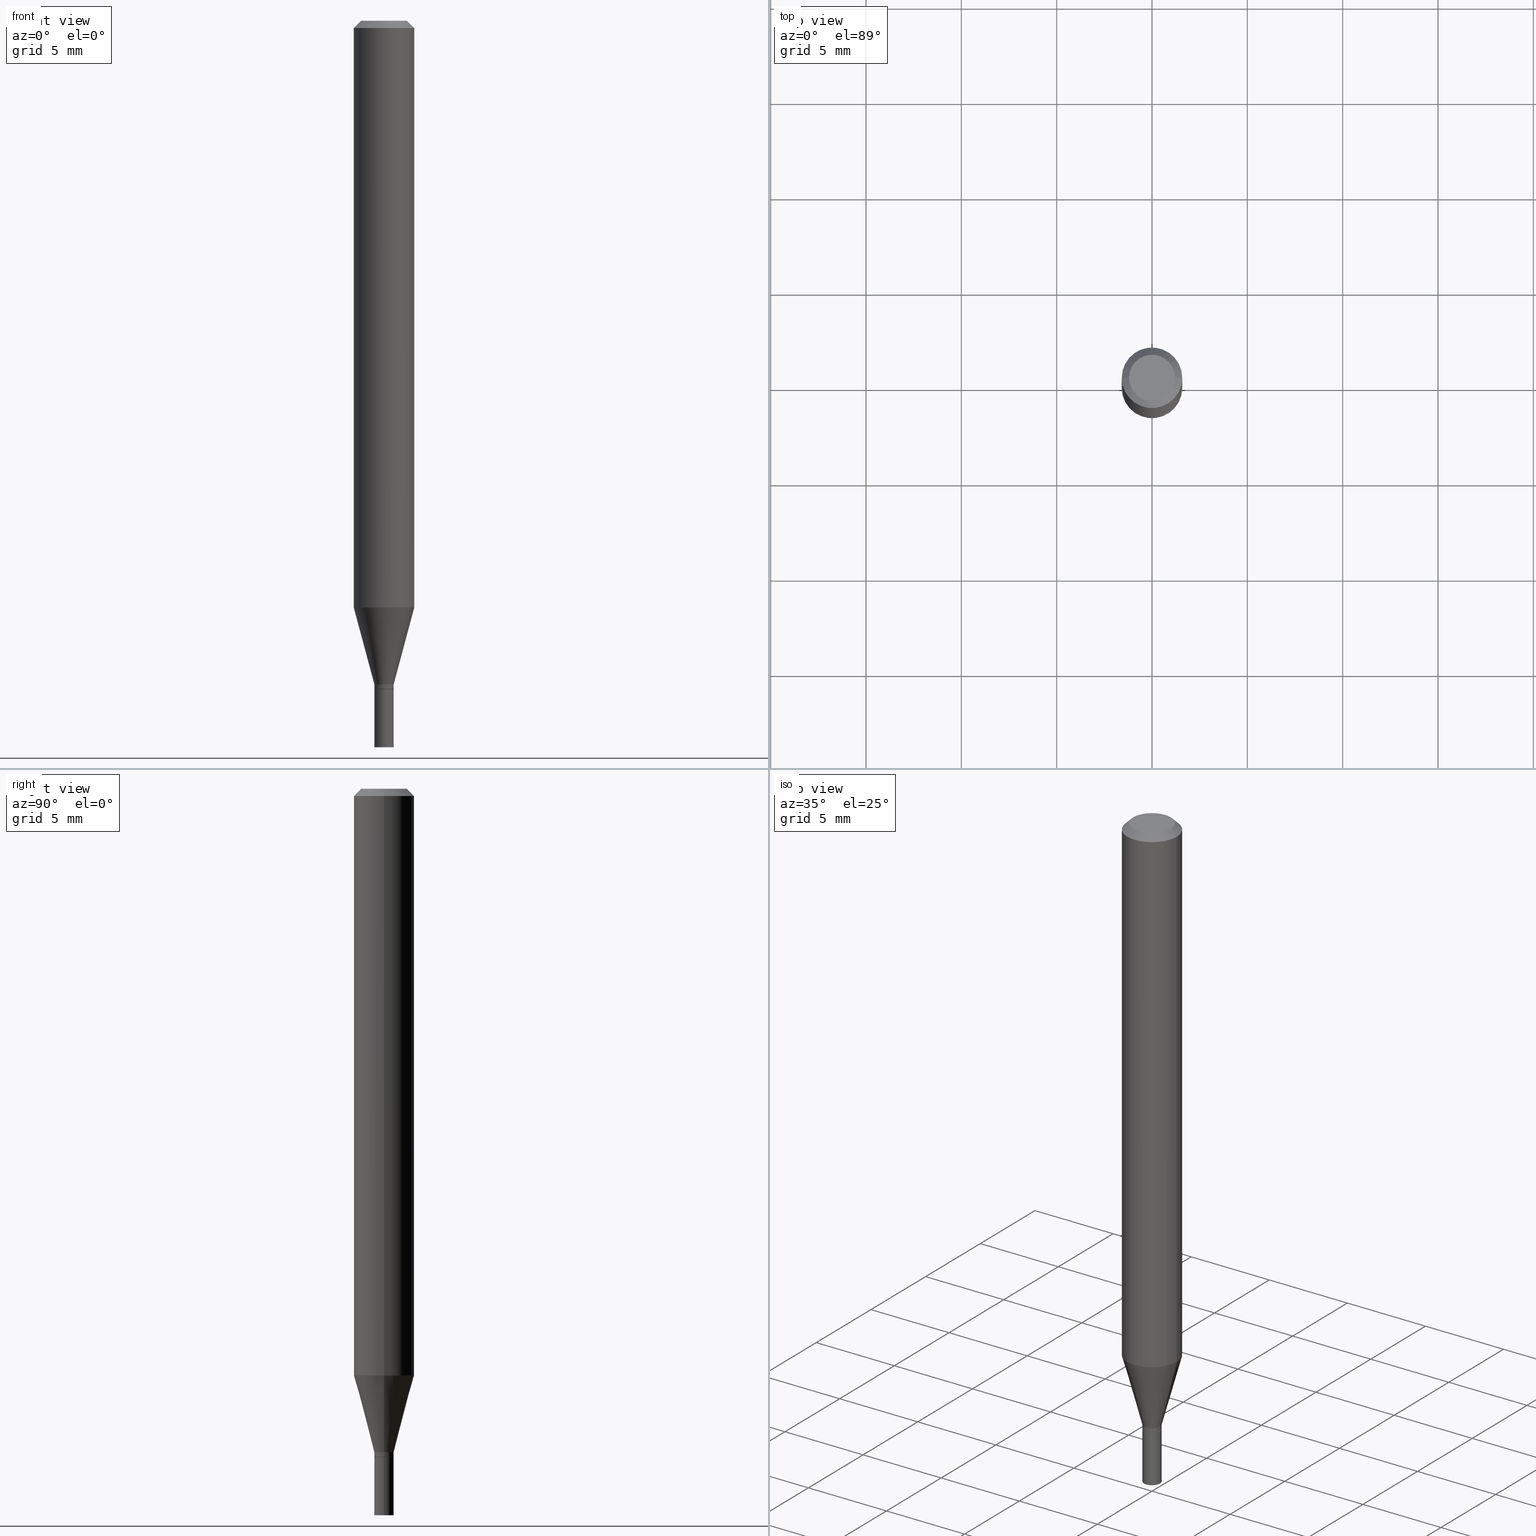
[diagram: canonical four-view strip — front | top / right | iso, engineering-drawing reading convention]
A machine part, canonical four-view strip (front | top / right | iso — engineering-drawing reading convention). The complete STEP part file that produces these views, byte-faithful:
ISO-10303-21;
HEADER;
FILE_DESCRIPTION (( 'STEP AP203' ),
    '1' );
FILE_NAME ('01191.STEP',
    '2024-03-19T23:50:57',
    ( '' ),
    ( '' ),
    'SwSTEP 2.0',
    'SolidWorks 2023',
    '' );
FILE_SCHEMA (( 'CONFIG_CONTROL_DESIGN' ));
ENDSEC;

DATA;
#1 = EDGE_CURVE ( 'NONE', #146, #419, #35, .T. ) ;
#2 = DIRECTION ( 'NONE',  ( -2.445468806185136597E-29, 3.491481338843145583E-15, 1.000000000000000000 ) ) ;
#3 = AXIS2_PLACEMENT_3D ( 'NONE', #8, #145, #130 ) ;
#4 = FACE_OUTER_BOUND ( 'NONE', #153, .T. ) ;
#5 = CALENDAR_DATE ( 2024, 19, 3 ) ;
#6 = ORIENTED_EDGE ( 'NONE', *, *, #58, .F. ) ;
#7 = ADVANCED_FACE ( 'NONE', ( #295 ), #384, .T. ) ;
#8 = CARTESIAN_POINT ( 'NONE',  ( 3.374746952535488593E-29, -4.818244247603541543E-15, -1.380000000000000115 ) ) ;
#9 = ORIENTED_EDGE ( 'NONE', *, *, #161, .T. ) ;
#10 = AXIS2_PLACEMENT_3D ( 'NONE', #361, #327, #138 ) ;
#11 = AXIS2_PLACEMENT_3D ( 'NONE', #426, #386, #164 ) ;
#12 = DIRECTION ( 'NONE',  ( -2.445468806185136597E-29, 3.491481338843145583E-15, 1.000000000000000000 ) ) ;
#13 = ORIENTED_EDGE ( 'NONE', *, *, #274, .F. ) ;
#14 = COORDINATED_UNIVERSAL_TIME_OFFSET ( 5, 0, .BEHIND. ) ;
#15 = CARTESIAN_POINT ( 'NONE',  ( 0.000000000000000000, 0.000000000000000000, 0.000000000000000000 ) ) ;
#16 = VERTEX_POINT ( 'NONE', #73 ) ;
#17 = SHAPE_DEFINITION_REPRESENTATION ( #271, #402 ) ;
#18 = ADVANCED_FACE ( 'NONE', ( #4 ), #357, .T. ) ;
#19 = CC_DESIGN_PERSON_AND_ORGANIZATION_ASSIGNMENT ( #162, #460, ( #151 ) ) ;
#20 = CARTESIAN_POINT ( 'NONE',  ( -0.01999999999999992409, 1.421085471520194978E-16, -9.837870180509774009E-31 ) ) ;
#21 = ORIENTED_EDGE ( 'NONE', *, *, #202, .T. ) ;
#22 = FACE_OUTER_BOUND ( 'NONE', #177, .T. ) ;
#23 = CIRCLE ( 'NONE', #186, 0.01949999999999999997 ) ;
#24 = ORIENTED_EDGE ( 'NONE', *, *, #142, .T. ) ;
#25 = AXIS2_PLACEMENT_3D ( 'NONE', #37, #397, #103 ) ;
#26 = PERSON_AND_ORGANIZATION_ROLE ( 'design_owner' ) ;
#27 =( NAMED_UNIT ( * ) SI_UNIT ( $, .STERADIAN. ) SOLID_ANGLE_UNIT ( ) );
#28 = FACE_OUTER_BOUND ( 'NONE', #219, .T. ) ;
#29 = CIRCLE ( 'NONE', #198, 0.06250000000000000000 ) ;
#30 = CC_DESIGN_APPROVAL ( #436, ( #365 ) ) ;
#31 = CARTESIAN_POINT ( 'NONE',  ( -0.02000000000000000042, -4.885624580782109696E-15, -1.380000000000000115 ) ) ;
#32 = DIRECTION ( 'NONE',  ( -2.445468806185136597E-29, 3.491481338843145583E-15, 1.000000000000000000 ) ) ;
#33 = ADVANCED_FACE ( 'NONE', ( #207 ), #175, .T. ) ;
#34 =( NAMED_UNIT ( * ) PLANE_ANGLE_UNIT ( ) SI_UNIT ( $, .RADIAN. ) );
#35 = CIRCLE ( 'NONE', #25, 0.06250000000000000000 ) ;
#36 = APPROVAL_PERSON_ORGANIZATION ( #277, #97, #204 ) ;
#37 = CARTESIAN_POINT ( 'NONE',  ( 2.962411176570807976E-29, -4.229538039829856953E-15, -1.211387840678322503 ) ) ;
#38 = VERTEX_POINT ( 'NONE', #439 ) ;
#39 = DIRECTION ( 'NONE',  ( -2.445468806185136597E-29, 3.491481338843145583E-15, 1.000000000000000000 ) ) ;
#40 = AXIS2_PLACEMENT_3D ( 'NONE', #15, #232, #367 ) ;
#41 = LINE ( 'NONE', #181, #70 ) ;
#42 = ORIENTED_EDGE ( 'NONE', *, *, #82, .F. ) ;
#43 = CARTESIAN_POINT ( 'NONE',  ( 1.396592535537590876E-16, 0.01999999999999518135, -1.380000000000000115 ) ) ;
#44 = DIRECTION ( 'NONE',  ( -2.445468806185136597E-29, 3.491481338843145583E-15, 1.000000000000000000 ) ) ;
#45 = ORIENTED_EDGE ( 'NONE', *, *, #398, .T. ) ;
#46 = DIRECTION ( 'NONE',  ( 1.000000000000000000, -6.982962677686266711E-15, 0.000000000000000000 ) ) ;
#47 = VECTOR ( 'NONE', #131, 39.37007874015748143 ) ;
#48 = DIRECTION ( 'NONE',  ( -2.445468806185136597E-29, 3.491481338843145583E-15, 1.000000000000000000 ) ) ;
#49 = ORIENTED_EDGE ( 'NONE', *, *, #230, .T. ) ;
#50 = DATE_AND_TIME ( #144, #165 ) ;
#51 = APPROVAL ( #296, 'UNSPECIFIED' ) ;
#52 = CARTESIAN_POINT ( 'NONE',  ( -0.06250000000000000000, -1.696865920106189400E-15, -0.01499999999999999944 ) ) ;
#53 = ORIENTED_EDGE ( 'NONE', *, *, #84, .T. ) ;
#54 = DIRECTION ( 'NONE',  ( -2.445468806185136597E-29, 3.491481338843145583E-15, 1.000000000000000000 ) ) ;
#55 = ORIENTED_EDGE ( 'NONE', *, *, #142, .F. ) ;
#56 = APPROVAL_STATUS ( 'not_yet_approved' ) ;
#57 = DIRECTION ( 'NONE',  ( 2.438088387897960049E-29, -3.491481338843145188E-15, -1.000000000000000000 ) ) ;
#58 = EDGE_CURVE ( 'NONE', #83, #454, #249, .T. ) ;
#59 = AXIS2_PLACEMENT_3D ( 'NONE', #318, #463, #132 ) ;
#60 = CARTESIAN_POINT ( 'NONE',  ( 3.373524218132396352E-29, -4.816498506934120039E-15, -1.379500000000000171 ) ) ;
#61 = COORDINATED_UNIVERSAL_TIME_OFFSET ( 5, 0, .BEHIND. ) ;
#62 = DIRECTION ( 'NONE',  ( 1.000000000000000000, 0.000000000000000000, 0.000000000000000000 ) ) ;
#63 = AXIS2_PLACEMENT_3D ( 'NONE', #243, #65, #158 ) ;
#64 = ADVANCED_FACE ( 'NONE', ( #329 ), #238, .T. ) ;
#65 = DIRECTION ( 'NONE',  ( -2.445468806185136597E-29, 3.491481338843145583E-15, 1.000000000000000000 ) ) ;
#66 = MANIFOLD_SOLID_BREP ( 'Body-Move/Copy2[1]', #338 ) ;
#67 = EDGE_CURVE ( 'NONE', #146, #196, #141, .T. ) ;
#68 = ORIENTED_EDGE ( 'NONE', *, *, #464, .T. ) ;
#69 = VECTOR ( 'NONE', #211, 39.37007874015748143 ) ;
#70 = VECTOR ( 'NONE', #331, 39.37007874015748143 ) ;
#71 = CARTESIAN_POINT ( 'NONE',  ( 0.01949999999999999997, -4.954412019818423555E-15, -1.380000000000000115 ) ) ;
#72 = ORIENTED_EDGE ( 'NONE', *, *, #84, .F. ) ;
#73 = CARTESIAN_POINT ( 'NONE',  ( 0.02000000000000000042, -5.376881261818443984E-15, -1.500000000000000222 ) ) ;
#74 = PERSON_AND_ORGANIZATION_ROLE ( 'creator' ) ;
#75 =( GEOMETRIC_REPRESENTATION_CONTEXT ( 3 ) GLOBAL_UNCERTAINTY_ASSIGNED_CONTEXT ( ( #179 ) ) GLOBAL_UNIT_ASSIGNED_CONTEXT ( ( #284, #34, #27 ) ) REPRESENTATION_CONTEXT ( 'NONE', 'WORKASPACE' ) );
#76 = CARTESIAN_POINT ( 'NONE',  ( 3.374746952535488593E-29, -4.818244247603541543E-15, -1.380000000000000115 ) ) ;
#77 = ORIENTED_EDGE ( 'NONE', *, *, #326, .F. ) ;
#78 = DIRECTION ( 'NONE',  ( 0.2588190451025206840, 1.565188264969626504E-15, 0.9659258262890682012 ) ) ;
#79 = ORIENTED_EDGE ( 'NONE', *, *, #239, .T. ) ;
#80 = CARTESIAN_POINT ( 'NONE',  ( -0.02000000000000000042, -4.885624580782109696E-15, -1.500000000000000222 ) ) ;
#81 = CYLINDRICAL_SURFACE ( 'NONE', #366, 0.02000000000000000042 ) ;
#82 = EDGE_CURVE ( 'NONE', #38, #440, #86, .T. ) ;
#83 = VERTEX_POINT ( 'NONE', #343 ) ;
#84 = EDGE_CURVE ( 'NONE', #440, #370, #173, .T. ) ;
#85 = DATE_AND_TIME ( #407, #206 ) ;
#86 = LINE ( 'NONE', #20, #281 ) ;
#87 = ORIENTED_EDGE ( 'NONE', *, *, #147, .F. ) ;
#88 = ADVANCED_FACE ( 'NONE', ( #412 ), #335, .T. ) ;
#89 = CARTESIAN_POINT ( 'NONE',  ( 0.02000000000000000042, -4.957903501157267351E-15, -1.380000000000000115 ) ) ;
#90 = EDGE_LOOP ( 'NONE', ( #311, #13, #222, #298 ) ) ;
#91 = FACE_OUTER_BOUND ( 'NONE', #110, .T. ) ;
#92 = CC_DESIGN_APPROVAL ( #97, ( #151 ) ) ;
#93 = DIRECTION ( 'NONE',  ( 0.7071067811865444641, -7.319954787623245001E-15, -0.7071067811865505703 ) ) ;
#94 = CARTESIAN_POINT ( 'NONE',  ( 3.374746952535488593E-29, -4.818244247603541543E-15, -1.380000000000000115 ) ) ;
#95 = CARTESIAN_POINT ( 'NONE',  ( -3.223020679335594837E-45, 4.601619341103081537E-31, 1.317956160873471783E-16 ) ) ;
#96 = ADVANCED_FACE ( 'NONE', ( #448 ), #81, .T. ) ;
#97 = APPROVAL ( #385, 'UNSPECIFIED' ) ;
#98 = CYLINDRICAL_SURFACE ( 'NONE', #63, 0.06250000000000000000 ) ;
#99 = DESIGN_CONTEXT ( 'detailed design', #194, 'design' ) ;
#100 = VECTOR ( 'NONE', #425, 39.37007874015748143 ) ;
#101 = CIRCLE ( 'NONE', #433, 0.01999999999999992409 ) ;
#102 = FACE_OUTER_BOUND ( 'NONE', #233, .T. ) ;
#103 = DIRECTION ( 'NONE',  ( 1.000000000000000000, -6.982962677686270655E-15, 0.000000000000000000 ) ) ;
#104 = EDGE_CURVE ( 'NONE', #454, #38, #101, .T. ) ;
#105 = ORIENTED_EDGE ( 'NONE', *, *, #134, .T. ) ;
#106 = PRODUCT_RELATED_PRODUCT_CATEGORY ( 'detail', '', ( #421 ) ) ;
#107 = VERTEX_POINT ( 'NONE', #89 ) ;
#108 = ADVANCED_FACE ( 'NONE', ( #115 ), #135, .T. ) ;
#109 = CARTESIAN_POINT ( 'NONE',  ( 3.668203209277704895E-29, -5.237222008264718177E-15, -1.500000000000000222 ) ) ;
#110 = EDGE_LOOP ( 'NONE', ( #344, #289 ) ) ;
#111 = VECTOR ( 'NONE', #183, 39.37007874015748143 ) ;
#112 = AXIS2_PLACEMENT_3D ( 'NONE', #429, #315, #356 ) ;
#113 = CARTESIAN_POINT ( 'NONE',  ( 0.01999999999999992062, -4.922988687768834913E-15, -1.370000000000000107 ) ) ;
#114 = DIRECTION ( 'NONE',  ( -2.445468806185136597E-29, 3.491481338843145583E-15, 1.000000000000000000 ) ) ;
#115 = FACE_OUTER_BOUND ( 'NONE', #302, .T. ) ;
#116 = ORIENTED_EDGE ( 'NONE', *, *, #67, .T. ) ;
#117 = LINE ( 'NONE', #376, #415 ) ;
#118 = ORIENTED_EDGE ( 'NONE', *, *, #104, .T. ) ;
#119 = AXIS2_PLACEMENT_3D ( 'NONE', #43, #57, #379 ) ;
#120 = DIRECTION ( 'NONE',  ( 1.000000000000000000, -6.982962677686267499E-15, 4.884662768193073002E-29 ) ) ;
#121 = AXIS2_PLACEMENT_3D ( 'NONE', #291, #39, #396 ) ;
#122 = DATE_TIME_ROLE ( 'classification_date' ) ;
#123 = ORIENTED_EDGE ( 'NONE', *, *, #279, .F. ) ;
#124 = DIRECTION ( 'NONE',  ( 0.000000000000000000, 0.000000000000000000, 1.000000000000000000 ) ) ;
#125 = DIRECTION ( 'NONE',  ( 1.000000000000000000, -6.982962677686265922E-15, 4.876176775795935793E-29 ) ) ;
#126 = CIRCLE ( 'NONE', #133, 0.02000000000000000042 ) ;
#127 = CIRCLE ( 'NONE', #373, 0.01999999999999992062 ) ;
#128 = CARTESIAN_POINT ( 'NONE',  ( -0.01999999999999992062, -4.213334858521442034E-15, -1.370000000000000107 ) ) ;
#129 = EDGE_CURVE ( 'NONE', #370, #419, #306, .T. ) ;
#130 = DIRECTION ( 'NONE',  ( 1.000000000000000000, -6.982962677686258033E-15, 0.000000000000000000 ) ) ;
#131 = DIRECTION ( 'NONE',  ( -2.445468806185136877E-29, 3.491481338843145188E-15, 1.000000000000000000 ) ) ;
#132 = DIRECTION ( 'NONE',  ( 1.000000000000000000, -6.982962677686284065E-15, 0.000000000000000000 ) ) ;
#133 = AXIS2_PLACEMENT_3D ( 'NONE', #411, #223, #188 ) ;
#134 = EDGE_CURVE ( 'NONE', #332, #323, #459, .T. ) ;
#135 = CONICAL_SURFACE ( 'NONE', #465, 0.01999999999999992062, 0.2617993877991494078 ) ;
#136 = ORIENTED_EDGE ( 'NONE', *, *, #161, .F. ) ;
#137 = DIRECTION ( 'NONE',  ( -1.000000000000000000, 6.982962677686266711E-15, 0.000000000000000000 ) ) ;
#138 = DIRECTION ( 'NONE',  ( 1.000000000000000000, -6.982962677686263555E-15, 0.000000000000000000 ) ) ;
#139 = AXIS2_PLACEMENT_3D ( 'NONE', #221, #12, #304 ) ;
#140 = DATE_TIME_ROLE ( 'creation_date' ) ;
#141 = LINE ( 'NONE', #297, #111 ) ;
#142 = EDGE_CURVE ( 'NONE', #16, #359, #236, .T. ) ;
#143 = ORIENTED_EDGE ( 'NONE', *, *, #290, .T. ) ;
#144 = CALENDAR_DATE ( 2024, 19, 3 ) ;
#145 = DIRECTION ( 'NONE',  ( -2.445468806185136597E-29, 3.491481338843145583E-15, 1.000000000000000000 ) ) ;
#146 = VERTEX_POINT ( 'NONE', #189 ) ;
#147 = EDGE_CURVE ( 'NONE', #196, #252, #405, .T. ) ;
#148 = PRODUCT_DEFINITION_FORMATION_WITH_SPECIFIED_SOURCE ( 'ANY', '', #421, .NOT_KNOWN. ) ;
#149 = CARTESIAN_POINT ( 'NONE',  ( 3.373524218132396352E-29, -4.816498506934120039E-15, -1.379500000000000171 ) ) ;
#150 = EDGE_LOOP ( 'NONE', ( #262, #105 ) ) ;
#151 = PRODUCT_DEFINITION ( 'UNKNOWN', '', #148, #99 ) ;
#152 = DIRECTION ( 'NONE',  ( -2.445468806185136597E-29, 3.491481338843145583E-15, 1.000000000000000000 ) ) ;
#153 = EDGE_LOOP ( 'NONE', ( #24, #68, #123, #229 ) ) ;
#154 = PERSON ( 'UNSPECIFIED', 'UNSPECIFIED', 'UNSPECIFIED', ('UNSPECIFIED'), ('UNSPECIFIED'), ('UNSPECIFIED') ) ;
#155 = DIRECTION ( 'NONE',  ( 1.000000000000000000, -6.982962677686265922E-15, 4.876176775795935793E-29 ) ) ;
#156 = ORIENTED_EDGE ( 'NONE', *, *, #464, .F. ) ;
#157 = AXIS2_PLACEMENT_3D ( 'NONE', #450, #452, #264 ) ;
#158 = DIRECTION ( 'NONE',  ( 1.000000000000000000, -6.982962677686266711E-15, 4.876176775795935793E-29 ) ) ;
#159 = ORIENTED_EDGE ( 'NONE', *, *, #202, .F. ) ;
#160 = DIRECTION ( 'NONE',  ( -2.445468806185136597E-29, 3.491481338843145583E-15, 1.000000000000000000 ) ) ;
#161 = EDGE_CURVE ( 'NONE', #359, #16, #244, .T. ) ;
#162 = PERSON_AND_ORGANIZATION ( #154, #171 ) ;
#163 = ADVANCED_FACE ( 'NONE', ( #442 ), #340, .F. ) ;
#164 = DIRECTION ( 'NONE',  ( 1.000000000000000000, -6.982962677686270655E-15, 0.000000000000000000 ) ) ;
#165 = LOCAL_TIME ( 19, 50, 57.00000000000000000, #14 ) ;
#166 = DATE_AND_TIME ( #203, #303 ) ;
#167 = DIRECTION ( 'NONE',  ( -2.445468806185136597E-29, 3.491481338843145583E-15, 1.000000000000000000 ) ) ;
#168 = CARTESIAN_POINT ( 'NONE',  ( 0.01999999999999992409, -4.956157760487845058E-15, -1.379500000000000171 ) ) ;
#169 = ADVANCED_FACE ( 'NONE', ( #418 ), #406, .T. ) ;
#170 = LINE ( 'NONE', #245, #47 ) ;
#171 = ORGANIZATION ( 'UNSPECIFIED', 'UNSPECIFIED', '' ) ;
#172 = ORIENTED_EDGE ( 'NONE', *, *, #217, .F. ) ;
#173 = CIRCLE ( 'NONE', #404, 0.01999999999999992062 ) ;
#174 = ORIENTED_EDGE ( 'NONE', *, *, #217, .T. ) ;
#175 = CYLINDRICAL_SURFACE ( 'NONE', #121, 0.06250000000000000000 ) ;
#176 = CC_DESIGN_PERSON_AND_ORGANIZATION_ASSIGNMENT ( #403, #74, ( #148 ) ) ;
#177 = EDGE_LOOP ( 'NONE', ( #21, #174, #305, #6 ) ) ;
#178 = CONICAL_SURFACE ( 'NONE', #314, 0.01949999999999999997, 0.7853981633974739252 ) ;
#179 = UNCERTAINTY_MEASURE_WITH_UNIT (LENGTH_MEASURE( 1.000000000000000082E-05 ), #284, 'distance_accuracy_value', 'NONE');
#180 = EDGE_LOOP ( 'NONE', ( #257, #190, #360, #77 ) ) ;
#181 = CARTESIAN_POINT ( 'NONE',  ( -0.01949999999999999997, -4.679688414130321489E-15, -1.380000000000000115 ) ) ;
#182 = ORIENTED_EDGE ( 'NONE', *, *, #253, .F. ) ;
#183 = DIRECTION ( 'NONE',  ( -2.445468806185136877E-29, 3.491481338843145188E-15, 1.000000000000000000 ) ) ;
#184 = EDGE_LOOP ( 'NONE', ( #212, #116, #309, #336 ) ) ;
#185 = CC_DESIGN_PERSON_AND_ORGANIZATION_ASSIGNMENT ( #423, #26, ( #421 ) ) ;
#186 = AXIS2_PLACEMENT_3D ( 'NONE', #76, #54, #195 ) ;
#187 = APPROVAL_ROLE ( '' ) ;
#188 = DIRECTION ( 'NONE',  ( 1.000000000000000000, -6.982962677686284065E-15, 0.000000000000000000 ) ) ;
#189 = CARTESIAN_POINT ( 'NONE',  ( -0.06250000000000000000, -3.785448829979794337E-15, -1.211387840678322503 ) ) ;
#190 = ORIENTED_EDGE ( 'NONE', *, *, #287, .T. ) ;
#191 = CARTESIAN_POINT ( 'NONE',  ( -3.223020679335594837E-45, 4.601619341103081537E-31, 1.317956160873471783E-16 ) ) ;
#192 = ORIENTED_EDGE ( 'NONE', *, *, #193, .F. ) ;
#193 = EDGE_CURVE ( 'NONE', #440, #146, #117, .T. ) ;
#194 = APPLICATION_CONTEXT ( 'configuration controlled 3d designs of mechanical parts and assemblies' ) ;
#195 = DIRECTION ( 'NONE',  ( 1.000000000000000000, -6.982962677686258033E-15, 0.000000000000000000 ) ) ;
#196 = VERTEX_POINT ( 'NONE', #52 ) ;
#197 = LINE ( 'NONE', #348, #337 ) ;
#198 = AXIS2_PLACEMENT_3D ( 'NONE', #371, #263, #46 ) ;
#199 = APPROVAL_PERSON_ORGANIZATION ( #270, #436, #187 ) ;
#200 =( LENGTH_UNIT ( ) NAMED_UNIT ( * ) SI_UNIT ( $, .METRE. ) );
#201 = DIRECTION ( 'NONE',  ( -2.445468806185136597E-29, 3.491481338843145583E-15, 1.000000000000000000 ) ) ;
#202 = EDGE_CURVE ( 'NONE', #83, #273, #23, .T. ) ;
#203 = CALENDAR_DATE ( 2024, 19, 3 ) ;
#204 = APPROVAL_ROLE ( '' ) ;
#205 = CIRCLE ( 'NONE', #3, 0.01949999999999999997 ) ;
#206 = LOCAL_TIME ( 19, 50, 57.00000000000000000, #310 ) ;
#207 = FACE_OUTER_BOUND ( 'NONE', #416, .T. ) ;
#208 = ORIENTED_EDGE ( 'NONE', *, *, #446, .T. ) ;
#209 = CIRCLE ( 'NONE', #11, 0.06250000000000000000 ) ;
#210 = CLOSED_SHELL ( 'NONE', ( #457, #250, #7, #286, #108, #64, #33, #88, #163, #265, #408, #169 ) ) ;
#211 = DIRECTION ( 'NONE',  ( 0.7071067811865656694, -2.468850131082446387E-15, 0.7071067811865294761 ) ) ;
#212 = ORIENTED_EDGE ( 'NONE', *, *, #253, .T. ) ;
#213 = CC_DESIGN_PERSON_AND_ORGANIZATION_ASSIGNMENT ( #215, #394, ( #148 ) ) ;
#214 = DIRECTION ( 'NONE',  ( 1.000000000000000000, -6.982962677686265922E-15, 4.876176775795935793E-29 ) ) ;
#215 = PERSON_AND_ORGANIZATION ( #154, #171 ) ;
#216 = CONICAL_SURFACE ( 'NONE', #389, 0.01949999999999999997, 0.7853981633974739252 ) ;
#217 = EDGE_CURVE ( 'NONE', #273, #38, #41, .T. ) ;
#218 = DIRECTION ( 'NONE',  ( -0.2588190451025206840, 5.211531920934545520E-15, 0.9659258262890682012 ) ) ;
#219 = EDGE_LOOP ( 'NONE', ( #55, #136 ) ) ;
#220 = DIRECTION ( 'NONE',  ( -0.7071067811865444641, 2.468850131082224717E-15, -0.7071067811865505703 ) ) ;
#221 = CARTESIAN_POINT ( 'NONE',  ( 3.668203209277705088E-31, -5.237222008264718399E-17, -0.01499999999999999944 ) ) ;
#222 = ORIENTED_EDGE ( 'NONE', *, *, #326, .T. ) ;
#223 = DIRECTION ( 'NONE',  ( -2.445468806185136597E-29, 3.491481338843145583E-15, 1.000000000000000000 ) ) ;
#224 = DIRECTION ( 'NONE',  ( 1.000000000000000000, -6.982962677686263555E-15, 0.000000000000000000 ) ) ;
#225 = ORIENTED_EDGE ( 'NONE', *, *, #58, .T. ) ;
#226 = AXIS2_PLACEMENT_3D ( 'NONE', #95, #167, #241 ) ;
#227 = APPROVAL_DATE_TIME ( #50, #436 ) ;
#228 = DIRECTION ( 'NONE',  ( 1.000000000000000000, -6.982962677686284065E-15, 0.000000000000000000 ) ) ;
#229 = ORIENTED_EDGE ( 'NONE', *, *, #398, .F. ) ;
#230 = EDGE_CURVE ( 'NONE', #273, #83, #205, .T. ) ;
#231 = CC_DESIGN_DATE_AND_TIME_ASSIGNMENT ( #85, #122, ( #365 ) ) ;
#232 = DIRECTION ( 'NONE',  ( -2.445468806185136597E-29, 3.491481338843145583E-15, 1.000000000000000000 ) ) ;
#233 = EDGE_LOOP ( 'NONE', ( #118, #466, #307, #377 ) ) ;
#234 = DIRECTION ( 'NONE',  ( 1.000000000000000000, -6.982962677686265922E-15, 4.876176775795935793E-29 ) ) ;
#235 = CYLINDRICAL_SURFACE ( 'NONE', #112, 0.01999999999999992409 ) ;
#236 = CIRCLE ( 'NONE', #364, 0.02000000000000000042 ) ;
#237 = ADVANCED_FACE ( 'NONE', ( #28 ), #383, .F. ) ;
#238 = CONICAL_SURFACE ( 'NONE', #10, 0.01999999999999992062, 0.2617993877991494078 ) ;
#239 = EDGE_CURVE ( 'NONE', #38, #454, #431, .T. ) ;
#240 = LINE ( 'NONE', #320, #100 ) ;
#241 = DIRECTION ( 'NONE',  ( 1.000000000000000000, -6.982962677686267499E-15, 4.884662768193073002E-29 ) ) ;
#242 = LINE ( 'NONE', #317, #322 ) ;
#243 = CARTESIAN_POINT ( 'NONE',  ( 0.000000000000000000, 0.000000000000000000, 0.000000000000000000 ) ) ;
#244 = CIRCLE ( 'NONE', #157, 0.02000000000000000042 ) ;
#245 = CARTESIAN_POINT ( 'NONE',  ( 0.02000000000000000042, -1.396592535537253145E-16, 9.752353551591871936E-31 ) ) ;
#246 = PERSON_AND_ORGANIZATION_ROLE ( 'classification_officer' ) ;
#247 = AXIS2_PLACEMENT_3D ( 'NONE', #283, #430, #234 ) ;
#248 = ORIENTED_EDGE ( 'NONE', *, *, #239, .F. ) ;
#249 = LINE ( 'NONE', #71, #69 ) ;
#250 = ADVANCED_FACE ( 'NONE', ( #22 ), #216, .T. ) ;
#251 = PERSON_AND_ORGANIZATION ( #154, #171 ) ;
#252 = VERTEX_POINT ( 'NONE', #280 ) ;
#253 = EDGE_CURVE ( 'NONE', #419, #146, #209, .T. ) ;
#254 = SECURITY_CLASSIFICATION_LEVEL ( 'unclassified' ) ;
#255 = CARTESIAN_POINT ( 'NONE',  ( 3.316907271900976096E-16, 0.04749999999999999362, -9.994755555137580731E-17 ) ) ;
#256 = AXIS2_PLACEMENT_3D ( 'NONE', #400, #2, #214 ) ;
#257 = ORIENTED_EDGE ( 'NONE', *, *, #134, .F. ) ;
#258 = VECTOR ( 'NONE', #93, 39.37007874015748143 ) ;
#259 = CARTESIAN_POINT ( 'NONE',  ( 3.350292264473637048E-29, -4.783329434215109894E-15, -1.370000000000000107 ) ) ;
#260 = DIRECTION ( 'NONE',  ( 1.000000000000000000, -6.982962677686263555E-15, 0.000000000000000000 ) ) ;
#261 = CARTESIAN_POINT ( 'NONE',  ( 3.350292264473637048E-29, -4.783329434215109894E-15, -1.370000000000000107 ) ) ;
#262 = ORIENTED_EDGE ( 'NONE', *, *, #274, .T. ) ;
#263 = DIRECTION ( 'NONE',  ( -2.445468806185136597E-29, 3.491481338843145583E-15, 1.000000000000000000 ) ) ;
#264 = DIRECTION ( 'NONE',  ( 1.000000000000000000, -6.982962677686284065E-15, 0.000000000000000000 ) ) ;
#265 = ADVANCED_FACE ( 'NONE', ( #391 ), #456, .F. ) ;
#266 = EDGE_LOOP ( 'NONE', ( #192, #53, #451, #449 ) ) ;
#267 = CIRCLE ( 'NONE', #59, 0.02000000000000000042 ) ;
#268 = DIRECTION ( 'NONE',  ( -1.000000000000000000, 6.982962677686265922E-15, -4.876176775795935793E-29 ) ) ;
#269 = EDGE_LOOP ( 'NONE', ( #159, #362 ) ) ;
#270 = PERSON_AND_ORGANIZATION ( #154, #171 ) ;
#271 = PRODUCT_DEFINITION_SHAPE ( 'NONE', 'NONE',  #151 ) ;
#272 = DIRECTION ( 'NONE',  ( 1.000000000000000000, -6.982962677686258033E-15, 0.000000000000000000 ) ) ;
#273 = VERTEX_POINT ( 'NONE', #428 ) ;
#274 = EDGE_CURVE ( 'NONE', #323, #332, #278, .T. ) ;
#275 = MECHANICAL_CONTEXT ( 'NONE', #300, 'mechanical' ) ;
#276 = AXIS2_PLACEMENT_3D ( 'NONE', #434, #325, #137 ) ;
#277 = PERSON_AND_ORGANIZATION ( #154, #171 ) ;
#278 = CIRCLE ( 'NONE', #226, 0.04749999999999999362 ) ;
#279 = EDGE_CURVE ( 'NONE', #107, #455, #267, .T. ) ;
#280 = CARTESIAN_POINT ( 'NONE',  ( 0.06250000000000000000, -4.888073874380388472E-16, -0.01499999999999999944 ) ) ;
#281 = VECTOR ( 'NONE', #444, 39.37007874015748143 ) ;
#282 = COORDINATED_UNIVERSAL_TIME_OFFSET ( 5, 0, .BEHIND. ) ;
#283 = CARTESIAN_POINT ( 'NONE',  ( 3.374746952535488593E-29, -4.818244247603541543E-15, -1.380000000000000115 ) ) ;
#284 =( CONVERSION_BASED_UNIT ( 'INCH', #288 ) LENGTH_UNIT ( ) NAMED_UNIT ( #387 ) );
#285 = FACE_OUTER_BOUND ( 'NONE', #184, .T. ) ;
#286 = ADVANCED_FACE ( 'NONE', ( #285 ), #98, .T. ) ;
#287 = EDGE_CURVE ( 'NONE', #332, #252, #378, .T. ) ;
#288 = LENGTH_MEASURE_WITH_UNIT ( LENGTH_MEASURE( 0.02539999999999999897 ), #200 );
#289 = ORIENTED_EDGE ( 'NONE', *, *, #351, .T. ) ;
#290 = EDGE_CURVE ( 'NONE', #454, #370, #401, .T. ) ;
#291 = CARTESIAN_POINT ( 'NONE',  ( 0.000000000000000000, 0.000000000000000000, 0.000000000000000000 ) ) ;
#292 = ORIENTED_EDGE ( 'NONE', *, *, #67, .F. ) ;
#293 = CARTESIAN_POINT ( 'NONE',  ( 0.06250000000000000000, -4.811533449433679005E-16, -0.01499999999999999944 ) ) ;
#294 = AXIS2_PLACEMENT_3D ( 'NONE', #321, #124, #62 ) ;
#295 = FACE_OUTER_BOUND ( 'NONE', #180, .T. ) ;
#296 = APPROVAL_STATUS ( 'not_yet_approved' ) ;
#297 = CARTESIAN_POINT ( 'NONE',  ( -0.06250000000000000000, 4.440892098500626162E-16, -3.074334431409316114E-30 ) ) ;
#298 = ORIENTED_EDGE ( 'NONE', *, *, #147, .T. ) ;
#299 = DIRECTION ( 'NONE',  ( -2.445468806185136597E-29, 3.491481338843145583E-15, 1.000000000000000000 ) ) ;
#300 = APPLICATION_CONTEXT ( 'configuration controlled 3d designs of mechanical parts and assemblies' ) ;
#301 = DIRECTION ( 'NONE',  ( 2.438088387897960049E-29, -3.491481338843145188E-15, -1.000000000000000000 ) ) ;
#302 = EDGE_LOOP ( 'NONE', ( #413, #445, #182, #410 ) ) ;
#303 = LOCAL_TIME ( 19, 50, 57.00000000000000000, #61 ) ;
#304 = DIRECTION ( 'NONE',  ( 1.000000000000000000, -6.982962677686266711E-15, 0.000000000000000000 ) ) ;
#305 = ORIENTED_EDGE ( 'NONE', *, *, #104, .F. ) ;
#306 = LINE ( 'NONE', #113, #347 ) ;
#307 = ORIENTED_EDGE ( 'NONE', *, *, #342, .F. ) ;
#308 = DIRECTION ( 'NONE',  ( 1.000000000000000000, -6.982962677686262766E-15, 0.000000000000000000 ) ) ;
#309 = ORIENTED_EDGE ( 'NONE', *, *, #363, .F. ) ;
#310 = COORDINATED_UNIVERSAL_TIME_OFFSET ( 5, 0, .BEHIND. ) ;
#311 = ORIENTED_EDGE ( 'NONE', *, *, #287, .F. ) ;
#312 = CARTESIAN_POINT ( 'NONE',  ( 3.374746952535488593E-29, -4.818244247603541543E-15, -1.380000000000000115 ) ) ;
#313 = APPLICATION_PROTOCOL_DEFINITION ( 'international standard', 'config_control_design', 1994, #194 ) ;
#314 = AXIS2_PLACEMENT_3D ( 'NONE', #94, #160, #353 ) ;
#315 = DIRECTION ( 'NONE',  ( -2.445468806185136597E-29, 3.491481338843145583E-15, 1.000000000000000000 ) ) ;
#316 = CARTESIAN_POINT ( 'NONE',  ( 3.584916967085606921E-29, -5.356492647442320375E-15, -1.500000000000000222 ) ) ;
#317 = CARTESIAN_POINT ( 'NONE',  ( 0.06250000000000000000, -4.364351673553916694E-16, 3.047610484872459871E-30 ) ) ;
#318 = CARTESIAN_POINT ( 'NONE',  ( 3.374746952535488593E-29, -4.818244247603541543E-15, -1.380000000000000115 ) ) ;
#319 = ADVANCED_FACE ( 'NONE', ( #91 ), #382, .F. ) ;
#320 = CARTESIAN_POINT ( 'NONE',  ( -0.02000000000000000042, 1.421085471520200401E-16, -9.837870180509812545E-31 ) ) ;
#321 = CARTESIAN_POINT ( 'NONE',  ( 0.000000000000000000, 0.000000000000000000, 0.000000000000000000 ) ) ;
#322 = VECTOR ( 'NONE', #458, 39.37007874015748143 ) ;
#323 = VERTEX_POINT ( 'NONE', #375 ) ;
#324 = PERSON_AND_ORGANIZATION ( #154, #171 ) ;
#325 = DIRECTION ( 'NONE',  ( 2.445468806185136597E-29, -3.491481338843145583E-15, -1.000000000000000000 ) ) ;
#326 = EDGE_CURVE ( 'NONE', #323, #196, #197, .T. ) ;
#327 = DIRECTION ( 'NONE',  ( -2.445468806185136597E-29, 3.491481338843145583E-15, 1.000000000000000000 ) ) ;
#328 = AXIS2_PLACEMENT_3D ( 'NONE', #316, #461, #125 ) ;
#329 = FACE_OUTER_BOUND ( 'NONE', #266, .T. ) ;
#330 = AXIS2_PLACEMENT_3D ( 'NONE', #334, #380, #369 ) ;
#331 = DIRECTION ( 'NONE',  ( -0.7071067811865656694, 7.493145998870420424E-15, 0.7071067811865294761 ) ) ;
#332 = VERTEX_POINT ( 'NONE', #333 ) ;
#333 = CARTESIAN_POINT ( 'NONE',  ( 0.04749999999999999362, -4.035134999187576158E-16, 1.317956160873497667E-16 ) ) ;
#334 = CARTESIAN_POINT ( 'NONE',  ( 3.668203209277705088E-31, -5.237222008264718399E-17, -0.01499999999999999944 ) ) ;
#335 = CONICAL_SURFACE ( 'NONE', #330, 0.06250000000000000000, 0.7853981633974439491 ) ;
#336 = ORIENTED_EDGE ( 'NONE', *, *, #446, .F. ) ;
#337 = VECTOR ( 'NONE', #220, 39.37007874015748143 ) ;
#338 = CLOSED_SHELL ( 'NONE', ( #18, #237, #96, #319 ) ) ;
#339 = CARTESIAN_POINT ( 'NONE',  ( 0.01999999999999992062, -4.922988687768834913E-15, -1.370000000000000107 ) ) ;
#340 = PLANE ( 'NONE',  #352 ) ;
#341 = ORIENTED_EDGE ( 'NONE', *, *, #1, .T. ) ;
#342 = EDGE_CURVE ( 'NONE', #370, #440, #127, .T. ) ;
#343 = CARTESIAN_POINT ( 'NONE',  ( 0.01949999999999999997, -4.954412019818423555E-15, -1.380000000000000115 ) ) ;
#344 = ORIENTED_EDGE ( 'NONE', *, *, #279, .T. ) ;
#345 = DIRECTION ( 'NONE',  ( -2.445468806185136597E-29, 3.491481338843145583E-15, 1.000000000000000000 ) ) ;
#346 = EDGE_LOOP ( 'NONE', ( #172, #49, #225, #248 ) ) ;
#347 = VECTOR ( 'NONE', #78, 39.37007874015748854 ) ;
#348 = CARTESIAN_POINT ( 'NONE',  ( -0.06250000000000000000, 3.840629472727444916E-16, -0.01499999999999999944 ) ) ;
#349 = CC_DESIGN_PERSON_AND_ORGANIZATION_ASSIGNMENT ( #324, #246, ( #365 ) ) ;
#350 = APPROVAL_DATE_TIME ( #166, #97 ) ;
#351 = EDGE_CURVE ( 'NONE', #455, #107, #126, .T. ) ;
#352 = AXIS2_PLACEMENT_3D ( 'NONE', #255, #301, #268 ) ;
#353 = DIRECTION ( 'NONE',  ( 1.000000000000000000, -6.982962677686258033E-15, 0.000000000000000000 ) ) ;
#354 = DIRECTION ( 'NONE',  ( 1.000000000000000000, -6.982962677686262766E-15, 0.000000000000000000 ) ) ;
#355 = APPLICATION_PROTOCOL_DEFINITION ( 'international standard', 'config_control_design', 1994, #300 ) ;
#356 = DIRECTION ( 'NONE',  ( 1.000000000000000000, -6.982962677686266711E-15, 4.876176775795935232E-29 ) ) ;
#357 = CYLINDRICAL_SURFACE ( 'NONE', #256, 0.02000000000000000042 ) ;
#358 = LOCAL_TIME ( 19, 50, 57.00000000000000000, #282 ) ;
#359 = VERTEX_POINT ( 'NONE', #80 ) ;
#360 = ORIENTED_EDGE ( 'NONE', *, *, #363, .T. ) ;
#361 = CARTESIAN_POINT ( 'NONE',  ( 3.350292264473637048E-29, -4.783329434215109894E-15, -1.370000000000000107 ) ) ;
#362 = ORIENTED_EDGE ( 'NONE', *, *, #230, .F. ) ;
#363 = EDGE_CURVE ( 'NONE', #252, #196, #29, .T. ) ;
#364 = AXIS2_PLACEMENT_3D ( 'NONE', #109, #48, #228 ) ;
#365 = SECURITY_CLASSIFICATION ( '', '', #254 ) ;
#366 = AXIS2_PLACEMENT_3D ( 'NONE', #409, #44, #155 ) ;
#367 = DIRECTION ( 'NONE',  ( 1.000000000000000000, -6.982962677686266711E-15, 4.876176775795935232E-29 ) ) ;
#368 = EDGE_LOOP ( 'NONE', ( #156, #9, #45, #374 ) ) ;
#369 = DIRECTION ( 'NONE',  ( -1.000000000000000000, 6.982962677686266711E-15, 0.000000000000000000 ) ) ;
#370 = VERTEX_POINT ( 'NONE', #339 ) ;
#371 = CARTESIAN_POINT ( 'NONE',  ( 3.668203209277705088E-31, -5.237222008264718399E-17, -0.01499999999999999944 ) ) ;
#372 = DIRECTION ( 'NONE',  ( 1.000000000000000000, -6.982962677686263555E-15, 0.000000000000000000 ) ) ;
#373 = AXIS2_PLACEMENT_3D ( 'NONE', #447, #114, #260 ) ;
#374 = ORIENTED_EDGE ( 'NONE', *, *, #351, .F. ) ;
#375 = CARTESIAN_POINT ( 'NONE',  ( -0.04749999999999999362, 3.578768372314212971E-16, 1.317956160873447624E-16 ) ) ;
#376 = CARTESIAN_POINT ( 'NONE',  ( -0.01999999999999992062, -4.641220887063090519E-15, -1.370000000000000107 ) ) ;
#377 = ORIENTED_EDGE ( 'NONE', *, *, #290, .F. ) ;
#378 = LINE ( 'NONE', #293, #258 ) ;
#379 = DIRECTION ( 'NONE',  ( -1.000000000000000000, 6.982962677686265922E-15, -4.876176775795935793E-29 ) ) ;
#380 = DIRECTION ( 'NONE',  ( 2.445468806185136597E-29, -3.491481338843145583E-15, -1.000000000000000000 ) ) ;
#381 = EDGE_LOOP ( 'NONE', ( #42, #79, #143, #72 ) ) ;
#382 = PLANE ( 'NONE',  #119 ) ;
#383 = PLANE ( 'NONE',  #328 ) ;
#384 = CONICAL_SURFACE ( 'NONE', #276, 0.06250000000000000000, 0.7853981633974439491 ) ;
#385 = APPROVAL_STATUS ( 'not_yet_approved' ) ;
#386 = DIRECTION ( 'NONE',  ( -2.445468806185136597E-29, 3.491481338843145583E-15, 1.000000000000000000 ) ) ;
#387 = DIMENSIONAL_EXPONENTS ( 1.000000000000000000, 0.000000000000000000, 0.000000000000000000, 0.000000000000000000, 0.000000000000000000, 0.000000000000000000, 0.000000000000000000 ) ;
#388 = FACE_OUTER_BOUND ( 'NONE', #346, .T. ) ;
#389 = AXIS2_PLACEMENT_3D ( 'NONE', #312, #32, #272 ) ;
#390 = LOCAL_TIME ( 19, 50, 57.00000000000000000, #441 ) ;
#391 = FACE_OUTER_BOUND ( 'NONE', #269, .T. ) ;
#392 = MANIFOLD_SOLID_BREP ( 'Body-Move/Copy2[2]', #210 ) ;
#393 = CARTESIAN_POINT ( 'NONE',  ( 0.06250000000000000000, -4.665973207185248623E-15, -1.211387840678322503 ) ) ;
#394 = PERSON_AND_ORGANIZATION_ROLE ( 'design_supplier' ) ;
#395 = APPROVAL_PERSON_ORGANIZATION ( #251, #51, #399 ) ;
#396 = DIRECTION ( 'NONE',  ( 1.000000000000000000, -6.982962677686266711E-15, 4.876176775795935793E-29 ) ) ;
#397 = DIRECTION ( 'NONE',  ( -2.445468806185136597E-29, 3.491481338843145583E-15, 1.000000000000000000 ) ) ;
#398 = EDGE_CURVE ( 'NONE', #16, #107, #170, .T. ) ;
#399 = APPROVAL_ROLE ( '' ) ;
#400 = CARTESIAN_POINT ( 'NONE',  ( 0.000000000000000000, 0.000000000000000000, 0.000000000000000000 ) ) ;
#401 = LINE ( 'NONE', #443, #424 ) ;
#402 = ADVANCED_BREP_SHAPE_REPRESENTATION ( '01191', ( #66, #392, #294 ), #75 ) ;
#403 = PERSON_AND_ORGANIZATION ( #154, #171 ) ;
#404 = AXIS2_PLACEMENT_3D ( 'NONE', #259, #345, #224 ) ;
#405 = CIRCLE ( 'NONE', #139, 0.06250000000000000000 ) ;
#406 = CYLINDRICAL_SURFACE ( 'NONE', #40, 0.01999999999999992409 ) ;
#407 = CALENDAR_DATE ( 2024, 19, 3 ) ;
#408 = ADVANCED_FACE ( 'NONE', ( #388 ), #178, .T. ) ;
#409 = CARTESIAN_POINT ( 'NONE',  ( 0.000000000000000000, 0.000000000000000000, 0.000000000000000000 ) ) ;
#410 = ORIENTED_EDGE ( 'NONE', *, *, #129, .F. ) ;
#411 = CARTESIAN_POINT ( 'NONE',  ( 3.374746952535488593E-29, -4.818244247603541543E-15, -1.380000000000000115 ) ) ;
#412 = FACE_OUTER_BOUND ( 'NONE', #90, .T. ) ;
#413 = ORIENTED_EDGE ( 'NONE', *, *, #342, .T. ) ;
#414 = DIRECTION ( 'NONE',  ( -2.445468806185136597E-29, 3.491481338843145583E-15, 1.000000000000000000 ) ) ;
#415 = VECTOR ( 'NONE', #218, 39.37007874015748854 ) ;
#416 = EDGE_LOOP ( 'NONE', ( #292, #341, #208, #87 ) ) ;
#417 = CC_DESIGN_APPROVAL ( #51, ( #148 ) ) ;
#418 = FACE_OUTER_BOUND ( 'NONE', #381, .T. ) ;
#419 = VERTEX_POINT ( 'NONE', #393 ) ;
#420 = DIRECTION ( 'NONE',  ( -2.445468806185136877E-29, 3.491481338843145188E-15, 1.000000000000000000 ) ) ;
#421 = PRODUCT ( '01191', '01191', '', ( #275 ) ) ;
#422 = CC_DESIGN_DATE_AND_TIME_ASSIGNMENT ( #462, #140, ( #151 ) ) ;
#423 = PERSON_AND_ORGANIZATION ( #154, #171 ) ;
#424 = VECTOR ( 'NONE', #420, 39.37007874015748143 ) ;
#425 = DIRECTION ( 'NONE',  ( -2.445468806185136877E-29, 3.491481338843145188E-15, 1.000000000000000000 ) ) ;
#426 = CARTESIAN_POINT ( 'NONE',  ( 2.962411176570807976E-29, -4.229538039829856953E-15, -1.211387840678322503 ) ) ;
#427 = CALENDAR_DATE ( 2024, 19, 3 ) ;
#428 = CARTESIAN_POINT ( 'NONE',  ( -0.01949999999999999997, -4.677039186956211866E-15, -1.380000000000000115 ) ) ;
#429 = CARTESIAN_POINT ( 'NONE',  ( 0.000000000000000000, 0.000000000000000000, 0.000000000000000000 ) ) ;
#430 = DIRECTION ( 'NONE',  ( -2.438088387897960049E-29, 3.491481338843145188E-15, 1.000000000000000000 ) ) ;
#431 = CIRCLE ( 'NONE', #438, 0.01999999999999992409 ) ;
#432 = CC_DESIGN_SECURITY_CLASSIFICATION ( #365, ( #148 ) ) ;
#433 = AXIS2_PLACEMENT_3D ( 'NONE', #149, #152, #308 ) ;
#434 = CARTESIAN_POINT ( 'NONE',  ( 3.668203209277705088E-31, -5.237222008264718399E-17, -0.01499999999999999944 ) ) ;
#435 = APPROVAL_DATE_TIME ( #437, #51 ) ;
#436 = APPROVAL ( #56, 'UNSPECIFIED' ) ;
#437 = DATE_AND_TIME ( #5, #390 ) ;
#438 = AXIS2_PLACEMENT_3D ( 'NONE', #60, #201, #354 ) ;
#439 = CARTESIAN_POINT ( 'NONE',  ( -0.01999999999999992409, -4.674389959782100665E-15, -1.379500000000000171 ) ) ;
#440 = VERTEX_POINT ( 'NONE', #128 ) ;
#441 = COORDINATED_UNIVERSAL_TIME_OFFSET ( 5, 0, .BEHIND. ) ;
#442 = FACE_OUTER_BOUND ( 'NONE', #150, .T. ) ;
#443 = CARTESIAN_POINT ( 'NONE',  ( 0.01999999999999992409, -1.396592535537247968E-16, 9.752353551591833400E-31 ) ) ;
#444 = DIRECTION ( 'NONE',  ( -2.445468806185136877E-29, 3.491481338843145188E-15, 1.000000000000000000 ) ) ;
#445 = ORIENTED_EDGE ( 'NONE', *, *, #193, .T. ) ;
#446 = EDGE_CURVE ( 'NONE', #419, #252, #242, .T. ) ;
#447 = CARTESIAN_POINT ( 'NONE',  ( 3.350292264473637048E-29, -4.783329434215109894E-15, -1.370000000000000107 ) ) ;
#448 = FACE_OUTER_BOUND ( 'NONE', #368, .T. ) ;
#449 = ORIENTED_EDGE ( 'NONE', *, *, #1, .F. ) ;
#450 = CARTESIAN_POINT ( 'NONE',  ( 3.668203209277704895E-29, -5.237222008264718177E-15, -1.500000000000000222 ) ) ;
#451 = ORIENTED_EDGE ( 'NONE', *, *, #129, .T. ) ;
#452 = DIRECTION ( 'NONE',  ( -2.445468806185136597E-29, 3.491481338843145583E-15, 1.000000000000000000 ) ) ;
#453 = AXIS2_PLACEMENT_3D ( 'NONE', #191, #414, #120 ) ;
#454 = VERTEX_POINT ( 'NONE', #168 ) ;
#455 = VERTEX_POINT ( 'NONE', #31 ) ;
#456 = PLANE ( 'NONE',  #247 ) ;
#457 = ADVANCED_FACE ( 'NONE', ( #102 ), #235, .T. ) ;
#458 = DIRECTION ( 'NONE',  ( -2.445468806185136877E-29, 3.491481338843145188E-15, 1.000000000000000000 ) ) ;
#459 = CIRCLE ( 'NONE', #453, 0.04749999999999999362 ) ;
#460 = PERSON_AND_ORGANIZATION_ROLE ( 'creator' ) ;
#461 = DIRECTION ( 'NONE',  ( -2.438088387897960049E-29, 3.491481338843145188E-15, 1.000000000000000000 ) ) ;
#462 = DATE_AND_TIME ( #427, #358 ) ;
#463 = DIRECTION ( 'NONE',  ( -2.445468806185136597E-29, 3.491481338843145583E-15, 1.000000000000000000 ) ) ;
#464 = EDGE_CURVE ( 'NONE', #359, #455, #240, .T. ) ;
#465 = AXIS2_PLACEMENT_3D ( 'NONE', #261, #299, #372 ) ;
#466 = ORIENTED_EDGE ( 'NONE', *, *, #82, .T. ) ;
ENDSEC;
END-ISO-10303-21;
